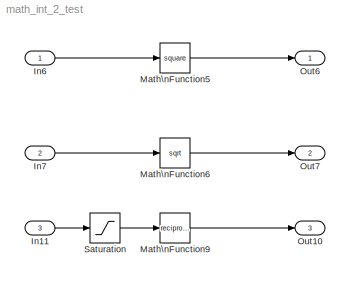
MODEL math_int_2_test
KIND model
BLOCK [Inport] In11
  IconDisplay = Port number
  OutDataTypeStr = int8
  Port = 3
  SID = 3
BLOCK [Inport] In6
  IconDisplay = Port number
  OutDataTypeStr = int32
  SID = 1
BLOCK [Inport] In7
  IconDisplay = Port number
  OutDataTypeStr = uint8
  Port = 2
  SID = 2
BLOCK [Math] Math\nFunction5
  Operator = square
  Ports = [1, 1]
  SID = 4
BLOCK [Math] Math\nFunction6
  Operator = sqrt
  Ports = [1, 1]
  SID = 5
BLOCK [Math] Math\nFunction9
  Operator = reciprocal
  Ports = [1, 1]
  SID = 6
BLOCK [Outport] Out10
  IconDisplay = Port number
  Port = 3
  SID = 9
BLOCK [Outport] Out6
  IconDisplay = Port number
  SID = 7
BLOCK [Outport] Out7
  IconDisplay = Port number
  Port = 2
  SID = 8
BLOCK [Saturate] Saturation
  InputPortMap = u0
  LowerLimit = 1
  Ports = [1, 1]
  SID = 13
  UpperLimit = 100
LINE In11:1 -> Saturation:1
LINE In6:1 -> Math\nFunction5:1
LINE In7:1 -> Math\nFunction6:1
LINE Math\nFunction5:1 -> Out6:1
LINE Math\nFunction6:1 -> Out7:1
LINE Math\nFunction9:1 -> Out10:1
LINE Saturation:1 -> Math\nFunction9:1
